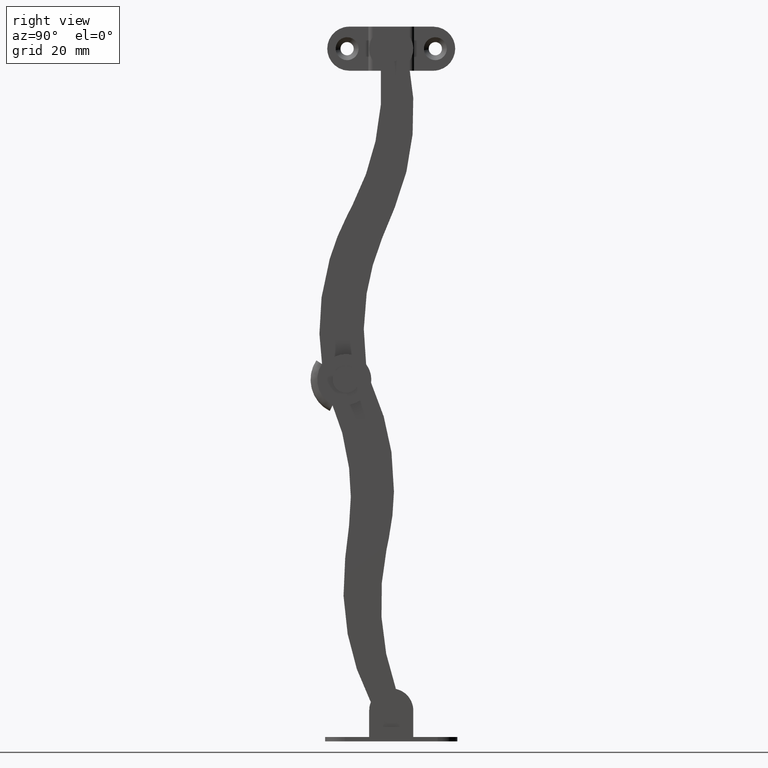
[diagram: clean part render]
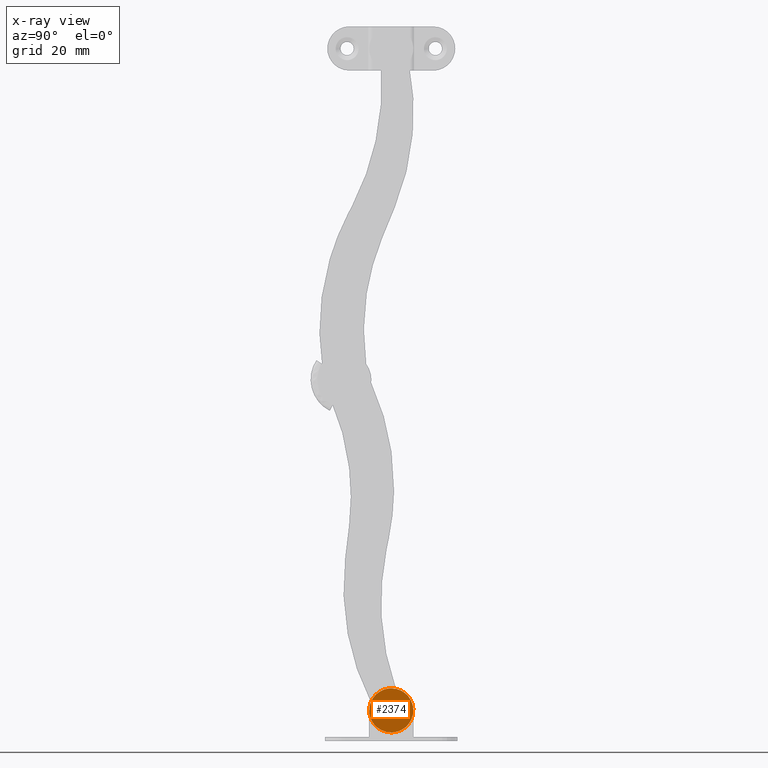
[diagram: x-ray — body ghosted, one internal face saturated and labeled with its STEP entity id]
A machine part, right view, then the same camera in x-ray: the body is ghosted and one INTERNAL B-rep face — a face not visible from any outside direction — is saturated and labeled: STEP entity #2374.
In plain terms, the highlighted face is a freeform B-spline surface patch.
Its self-contained STEP definition (entity closure, byte-faithful):
#2007=CARTESIAN_POINT('',(5.0,0.000241560012985,-73.499999999803492));
#2008=VERTEX_POINT('',#2007);
#2009=CARTESIAN_POINT('',(5.0,1.495619809149647,-74.882308923630461));
#2010=VERTEX_POINT('',#2009);
#2011=CARTESIAN_POINT('',(5.0,0.000241560012985,-73.499999999803492));
#2012=CARTESIAN_POINT('',(4.999999999999998,1.386827297286395,-73.499997744302604));
#2013=CARTESIAN_POINT('',(5.0,1.495619809149648,-74.882308923630461));
#2021=(BOUNDED_CURVE()B_SPLINE_CURVE(2,(#2011,#2012,#2013),.UNSPECIFIED.,.F.,.U.)B_SPLINE_CURVE_WITH_KNOTS((3,3),(0.0,0.236331300606630),.UNSPECIFIED.)CURVE()GEOMETRIC_REPRESENTATION_ITEM()RATIONAL_B_SPLINE_CURVE((1.0,0.723120658635818,0.969723356117269))REPRESENTATION_ITEM(''));
#2022=EDGE_CURVE('',#2008,#2010,#2021,.T.);
#2063=CARTESIAN_POINT('',(5.0,-1.495131809149472,-75.117691075972544));
#2064=VERTEX_POINT('',#2063);
#2070=CARTESIAN_POINT('',(5.0,-1.495131809149471,-75.117691075972544));
#2071=CARTESIAN_POINT('',(5.0,-1.499755904130574,-75.058937600414566));
#2072=CARTESIAN_POINT('',(5.0,-1.499755999997928,-75.000002439788602));
#2073=CARTESIAN_POINT('',(5.000000000000001,-1.499758439985031,-73.500002439790592));
#2074=CARTESIAN_POINT('',(5.0,0.000241560012985,-73.499999999803492));
#2082=(BOUNDED_CURVE()B_SPLINE_CURVE(2,(#2070,#2071,#2072,#2073,#2074),.UNSPECIFIED.,.F.,.U.)B_SPLINE_CURVE_WITH_KNOTS((3,2,3),(0.736331300606629,0.750000000000000,1.0),.UNSPECIFIED.)CURVE()GEOMETRIC_REPRESENTATION_ITEM()RATIONAL_B_SPLINE_CURVE((0.969723356117269,0.983986122550729,1.0,0.707106781186548,1.0))REPRESENTATION_ITEM(''));
#2083=EDGE_CURVE('',#2064,#2008,#2082,.T.);
#2106=CARTESIAN_POINT('',(5.0,0.000246439987190,-76.499999999799513));
#2107=VERTEX_POINT('',#2106);
#2108=CARTESIAN_POINT('',(5.0,1.495619809149648,-74.882308923630461));
#2109=CARTESIAN_POINT('',(5.0,1.500243904130750,-74.941062399188453));
#2110=CARTESIAN_POINT('',(5.0,1.500243999998103,-74.999997559814403));
#2111=CARTESIAN_POINT('',(5.000000000000001,1.500246439985206,-76.499997559812414));
#2112=CARTESIAN_POINT('',(5.0,0.000246439987190,-76.499999999799513));
#2120=(BOUNDED_CURVE()B_SPLINE_CURVE(2,(#2108,#2109,#2110,#2111,#2112),.UNSPECIFIED.,.F.,.U.)B_SPLINE_CURVE_WITH_KNOTS((3,2,3),(0.236331300606630,0.250000000000000,0.500000000000000),.UNSPECIFIED.)CURVE()GEOMETRIC_REPRESENTATION_ITEM()RATIONAL_B_SPLINE_CURVE((0.969723356117269,0.983986122550729,1.0,0.707106781186548,1.0))REPRESENTATION_ITEM(''));
#2121=EDGE_CURVE('',#2010,#2107,#2120,.T.);
#2123=CARTESIAN_POINT('',(5.0,0.000246439987190,-76.499999999799513));
#2124=CARTESIAN_POINT('',(5.0,-1.386339297286215,-76.500002255300416));
#2125=CARTESIAN_POINT('',(5.0,-1.495131809149472,-75.117691075972544));
#2133=(BOUNDED_CURVE()B_SPLINE_CURVE(2,(#2123,#2124,#2125),.UNSPECIFIED.,.F.,.U.)B_SPLINE_CURVE_WITH_KNOTS((3,3),(0.500000000000000,0.736331300606629),.UNSPECIFIED.)CURVE()GEOMETRIC_REPRESENTATION_ITEM()RATIONAL_B_SPLINE_CURVE((1.0,0.723120658635819,0.969723356117268))REPRESENTATION_ITEM(''));
#2134=EDGE_CURVE('',#2107,#2064,#2133,.T.);
#2193=CARTESIAN_POINT('',(5.0,-4.964802671746170,-75.590179250014017));
#2194=VERTEX_POINT('',#2193);
#2195=CARTESIAN_POINT('',(5.0,0.000235866709746,-69.999999999808125));
#2196=VERTEX_POINT('',#2195);
#2197=CARTESIAN_POINT('',(5.0,-4.964802671746170,-75.590179250014017));
#2198=CARTESIAN_POINT('',(5.000000000000001,-4.999755518306337,-75.296128731850956));
#2199=CARTESIAN_POINT('',(5.0,-4.999755999993298,-75.000008133091853));
#2200=CARTESIAN_POINT('',(5.000000000000001,-4.999764133283641,-70.000008133098461));
#2201=CARTESIAN_POINT('',(5.0,0.000235866709746,-69.999999999808125));
#2209=(BOUNDED_CURVE()B_SPLINE_CURVE(2,(#2197,#2198,#2199,#2200,#2201),.UNSPECIFIED.,.F.,.U.)B_SPLINE_CURVE_WITH_KNOTS((3,2,3),(0.729562473481966,0.750000000000000,1.0),.UNSPECIFIED.)CURVE()GEOMETRIC_REPRESENTATION_ITEM()RATIONAL_B_SPLINE_CURVE((0.956026754121874,0.976055948294190,1.0,0.707106781186548,1.0))REPRESENTATION_ITEM(''));
#2210=EDGE_CURVE('',#2194,#2196,#2209,.T.);
#2251=CARTESIAN_POINT('',(5.0,4.990917495573800,-74.694749183949938));
#2252=VERTEX_POINT('',#2251);
#2258=CARTESIAN_POINT('',(5.0,0.000235866709746,-69.999999999808125));
#2259=CARTESIAN_POINT('',(5.000000000000001,4.703766201123280,-69.999992348772551));
#2260=CARTESIAN_POINT('',(5.0,4.990917495573799,-74.694749183949938));
#2268=(BOUNDED_CURVE()B_SPLINE_CURVE(2,(#2258,#2259,#2260),.UNSPECIFIED.,.F.,.U.)B_SPLINE_CURVE_WITH_KNOTS((3,3),(0.0,0.239332962237988),.UNSPECIFIED.)CURVE()GEOMETRIC_REPRESENTATION_ITEM()RATIONAL_B_SPLINE_CURVE((1.0,0.719603993287830,0.976072041664670))REPRESENTATION_ITEM(''));
#2269=EDGE_CURVE('',#2196,#2252,#2268,.T.);
#2292=CARTESIAN_POINT('',(5.0,0.000252133290429,-79.999999999794895));
#2293=VERTEX_POINT('',#2292);
#2294=CARTESIAN_POINT('',(5.0,0.000252133290429,-79.999999999794895));
#2295=CARTESIAN_POINT('',(4.999999999999999,-4.440620495569338,-80.000007223576176));
#2296=CARTESIAN_POINT('',(4.999999999999999,-4.964802671746170,-75.590179250014017));
#2304=(BOUNDED_CURVE()B_SPLINE_CURVE(2,(#2294,#2295,#2296),.UNSPECIFIED.,.F.,.U.)B_SPLINE_CURVE_WITH_KNOTS((3,3),(0.500000000000000,0.729562473481966),.UNSPECIFIED.)CURVE()GEOMETRIC_REPRESENTATION_ITEM()RATIONAL_B_SPLINE_CURVE((1.0,0.731050832892357,0.956026754121874))REPRESENTATION_ITEM(''));
#2305=EDGE_CURVE('',#2293,#2194,#2304,.T.);
#2307=CARTESIAN_POINT('',(5.0,4.990917495573799,-74.694749183949938));
#2308=CARTESIAN_POINT('',(4.999999999999999,5.000243751498978,-74.847228049960677));
#2309=CARTESIAN_POINT('',(5.0,5.000243999993473,-74.999991866511152));
#2310=CARTESIAN_POINT('',(5.000000000000001,5.000252133283815,-79.999991866504544));
#2311=CARTESIAN_POINT('',(5.0,0.000252133290429,-79.999999999794895));
#2319=(BOUNDED_CURVE()B_SPLINE_CURVE(2,(#2307,#2308,#2309,#2310,#2311),.UNSPECIFIED.,.F.,.U.)B_SPLINE_CURVE_WITH_KNOTS((3,2,3),(0.239332962237988,0.250000000000000,0.500000000000000),.UNSPECIFIED.)CURVE()GEOMETRIC_REPRESENTATION_ITEM()RATIONAL_B_SPLINE_CURVE((0.976072041664670,0.987502787898718,1.0,0.707106781186548,1.0))REPRESENTATION_ITEM(''));
#2320=EDGE_CURVE('',#2252,#2293,#2319,.T.);
#2357=CARTESIAN_POINT('',(5.0,5.499631418606311,-80.499491034803910));
#2358=CARTESIAN_POINT('',(5.0,-5.499156104176854,-80.499508926070419));
#2359=CARTESIAN_POINT('',(5.0,5.499613526993824,-69.500490805361451));
#2360=CARTESIAN_POINT('',(5.0,-5.499173995789341,-69.500508696627946));
#2361=B_SPLINE_SURFACE_WITH_KNOTS('',1,1,((#2357,#2359),(#2358,#2360)),.UNSPECIFIED.,.F.,.F.,.U.,(2,2),(2,2),(0.0,10.998787522797720),(0.0,10.999000229457030),.UNSPECIFIED.);
#2362=ORIENTED_EDGE('',*,*,#2269,.T.);
#2363=ORIENTED_EDGE('',*,*,#2320,.T.);
#2364=ORIENTED_EDGE('',*,*,#2305,.T.);
#2365=ORIENTED_EDGE('',*,*,#2210,.T.);
#2366=EDGE_LOOP('',(#2362,#2363,#2364,#2365));
#2367=FACE_OUTER_BOUND('',#2366,.T.);
#2368=ORIENTED_EDGE('',*,*,#2134,.F.);
#2369=ORIENTED_EDGE('',*,*,#2121,.F.);
#2370=ORIENTED_EDGE('',*,*,#2022,.F.);
#2371=ORIENTED_EDGE('',*,*,#2083,.F.);
#2372=EDGE_LOOP('',(#2368,#2369,#2370,#2371));
#2373=FACE_BOUND('',#2372,.T.);
#2374=ADVANCED_FACE('',(#2367,#2373),#2361,.T.);